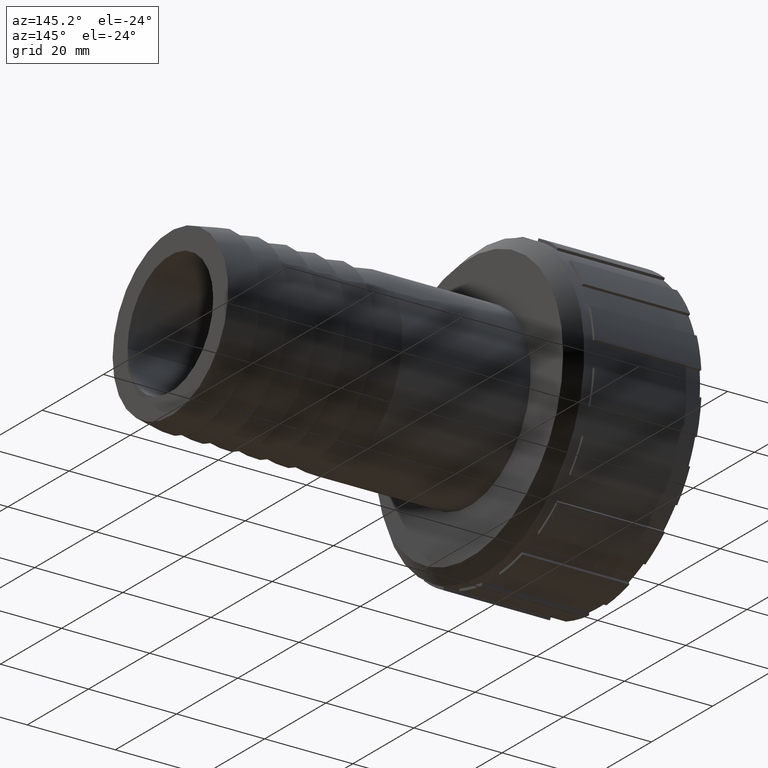
[diagram: clean part render]
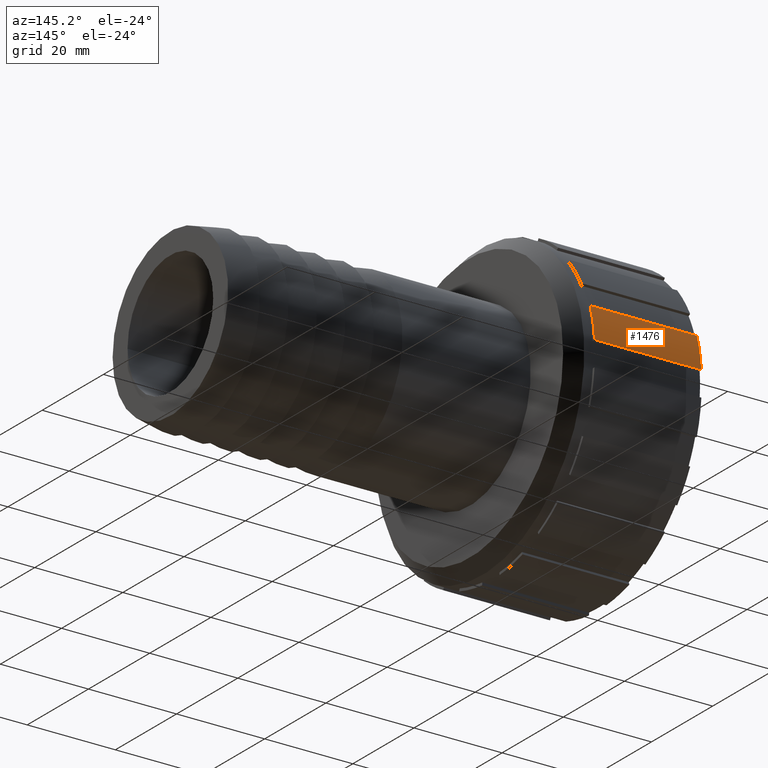
[diagram: same view with one face highlighted and labeled with its STEP entity id]
A machine part, auxiliary view. The second image highlights one B-rep face of the part: STEP entity #1476.
In plain terms, the highlighted cylindrical surface (partial cylindrical patch) has radius 33.9936 mm, axis along (-1, 0, 0).
Its self-contained STEP definition (entity closure, byte-faithful):
#25=CYLINDRICAL_SURFACE('',#1627,33.9936);
#71=CIRCLE('',#1552,33.9936);
#101=CIRCLE('',#1586,33.9936);
#195=FACE_OUTER_BOUND('',#280,.T.);
#280=EDGE_LOOP('',(#1208,#1209,#1210,#1211));
#426=LINE('',#2356,#554);
#432=LINE('',#2368,#560);
#554=VECTOR('',#1822,24.25);
#560=VECTOR('',#1830,24.25);
#681=VERTEX_POINT('',#2352);
#683=VERTEX_POINT('',#2355);
#686=VERTEX_POINT('',#2362);
#688=VERTEX_POINT('',#2366);
#829=EDGE_CURVE('',#683,#681,#426,.T.);
#835=EDGE_CURVE('',#686,#688,#432,.T.);
#867=EDGE_CURVE('',#686,#681,#71,.T.);
#898=EDGE_CURVE('',#688,#683,#101,.T.);
#1208=ORIENTED_EDGE('',*,*,#829,.T.);
#1209=ORIENTED_EDGE('',*,*,#867,.F.);
#1210=ORIENTED_EDGE('',*,*,#835,.T.);
#1211=ORIENTED_EDGE('',*,*,#898,.T.);
#1476=ADVANCED_FACE('',(#195),#25,.T.);
#1552=AXIS2_PLACEMENT_3D('',#2430,#1883,#1884);
#1586=AXIS2_PLACEMENT_3D('',#2468,#1952,#1953);
#1627=AXIS2_PLACEMENT_3D('',#2513,#2036,#2037);
#1822=DIRECTION('',(-1.,0.,0.));
#1830=DIRECTION('',(1.,0.,0.));
#1883=DIRECTION('center_axis',(-1.,0.,0.));
#1884=DIRECTION('ref_axis',(0.,0.,1.));
#1952=DIRECTION('center_axis',(-1.,0.,0.));
#1953=DIRECTION('ref_axis',(0.,0.,1.));
#2036=DIRECTION('center_axis',(-1.,0.,0.));
#2037=DIRECTION('ref_axis',(0.,-1.,0.));
#2352=CARTESIAN_POINT('',(0.,33.8753610330576,2.83280000000001));
#2355=CARTESIAN_POINT('',(24.25,33.8753610330576,2.83280000000001));
#2356=CARTESIAN_POINT('',(12.125,33.8753610330576,2.83280000000001));
#2362=CARTESIAN_POINT('',(0.,32.3808183420762,10.3463734930391));
#2366=CARTESIAN_POINT('',(24.25,32.3808183420762,10.3463734930391));
#2368=CARTESIAN_POINT('',(12.125,32.3808183420762,10.3463734930391));
#2430=CARTESIAN_POINT('Origin',(0.,0.,0.));
#2468=CARTESIAN_POINT('Origin',(24.25,0.,0.));
#2513=CARTESIAN_POINT('Origin',(12.125,0.,0.));